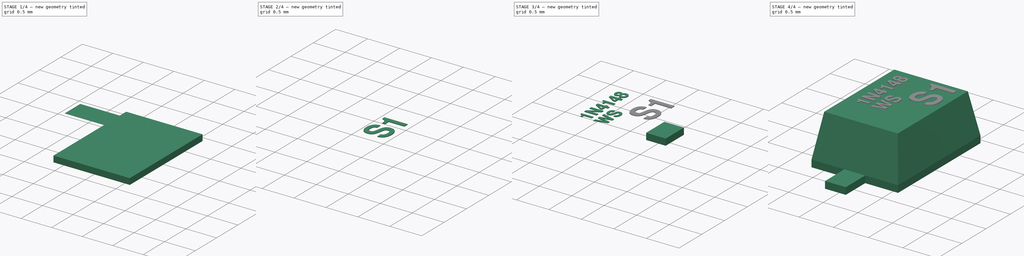
[diagram: build sequence overview — one tinted view per stage of 4, left to right]
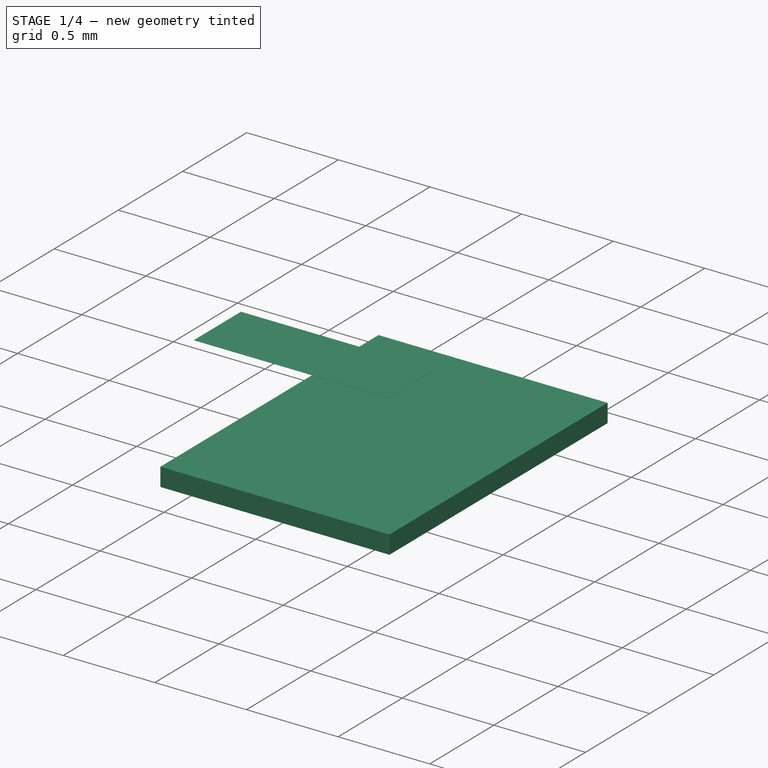
[diagram: stage 1 of 4 — iso view after this stage's code; geometry added in this stage tinted green]
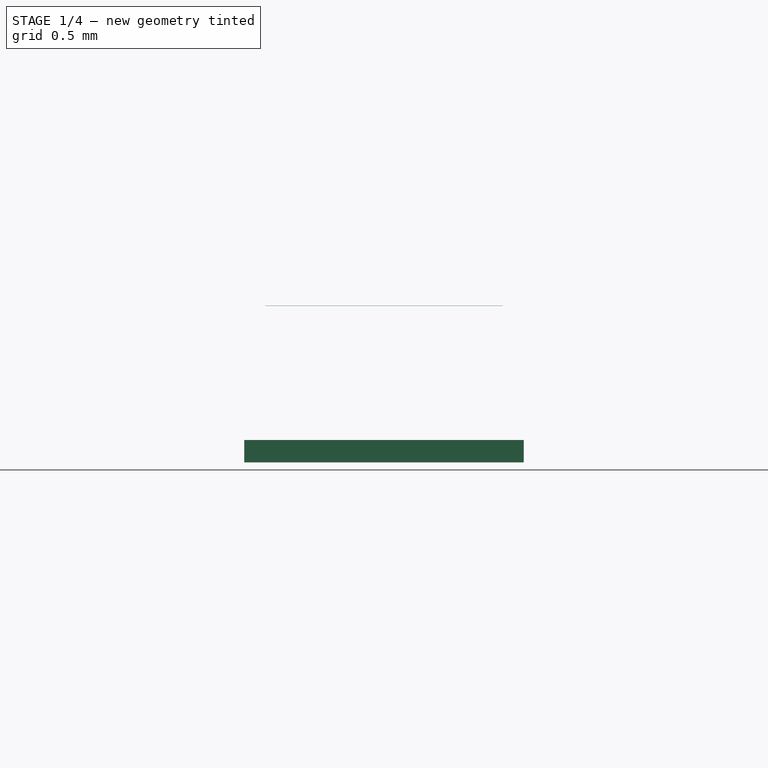
[diagram: stage 1 of 4 — front view after this stage's code; geometry added in this stage tinted green]
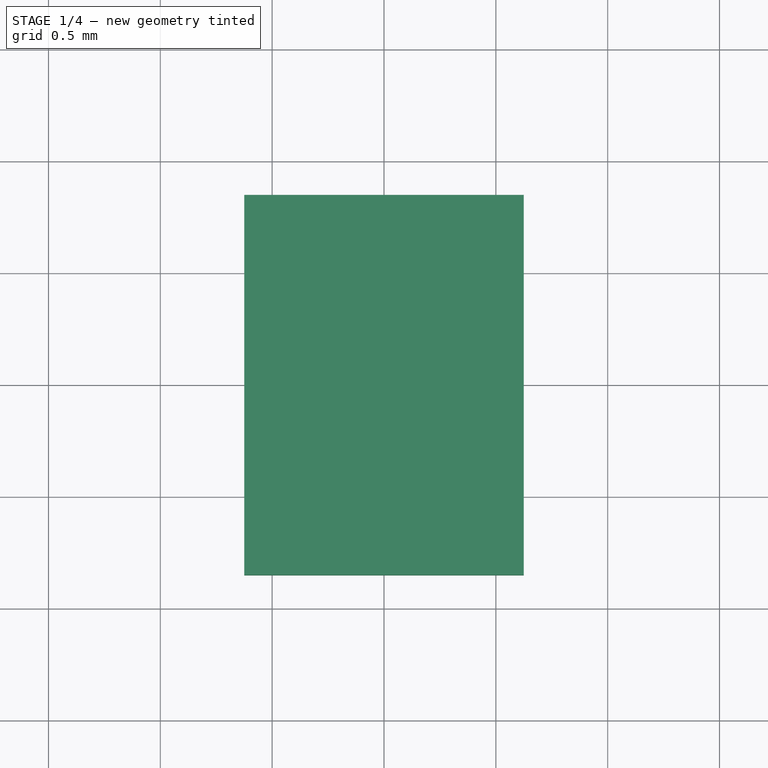
[diagram: stage 1 of 4 — top view after this stage's code; geometry added in this stage tinted green]
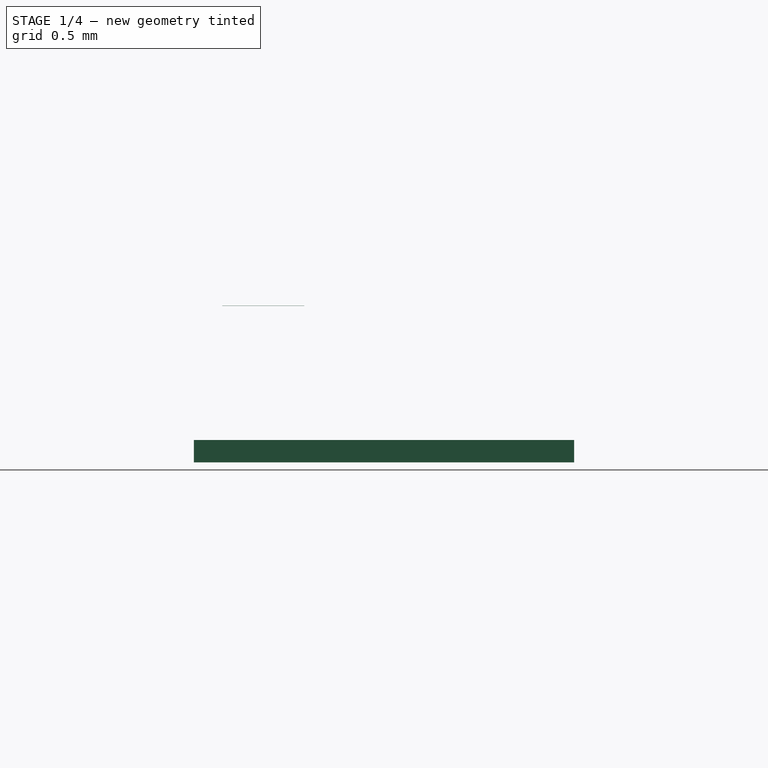
[diagram: stage 1 of 4 — right view after this stage's code; geometry added in this stage tinted green]
FCSTD DOCUMENT  (FreeCAD 0.19R16945 (Git))
Label: SOD323FL
License: All rights reserved
LicenseURL: http://en.wikipedia.org/wiki/All_rights_reserved
objects: Sketcher::SketchObject×5, PartDesign::Body×4, PartDesign::Pad×3, Part::Part2DObjectPython×3, Part::Extrusion×3, PartDesign::AdditiveLoft×1, PartDesign::FeatureBase×1, Part::MultiFuse×1
note: 25 computed .brp shape members not serialized (recipe doc carries the construction recipe); baked Part::Feature solids carry a one-line shape summary decoded from their .brp

FEATURE [Sketcher::SketchObject] Sketch
  AttachmentOffset = pos=(0,0,0.1) rot=(0,0,1;0rad)
  MapMode = 5
  Placement = pos=(0,0,0.1) rot=(0,0,1;0rad)
  Support = -> [XY_Plane]
  sketch-geometry (4):
    g0: LineSegment StartX=0.625 StartY=0.85 StartZ=0 EndX=-0.625 EndY=0.85 EndZ=0
    g1: LineSegment StartX=-0.625 StartY=0.85 StartZ=0 EndX=-0.625 EndY=-0.85 EndZ=0
    g2: LineSegment StartX=-0.625 StartY=-0.85 StartZ=0 EndX=0.625 EndY=-0.85 EndZ=0
    g3: LineSegment StartX=0.625 StartY=-0.85 StartZ=0 EndX=0.625 EndY=0.85 EndZ=0
  constraints (11):
    c: Coincident(g0,g1)
    c: Coincident(g1,g2)
    c: Coincident(g2,g3)
    c: Coincident(g3,g0)
    c: Horizontal(g0)
    c: Horizontal(g2)
    c: Vertical(g1)
    c: Vertical(g3)
    c: Symmetric(g0,g1,g-1)
    c: DistanceX(g0,g0) = 1.25
    c: DistanceY(g3,g3) = 1.7
FEATURE [Sketcher::SketchObject] Sketch001
  AttachmentOffset = pos=(0,0,0.7) rot=(0,0,1;0rad)
  MapMode = 5
  Placement = pos=(0,0,0.7) rot=(0,0,1;0rad)
  Support = -> [XY_Plane]
  expr: Constraints[10] = 0.85 * 1.7
  expr: Constraints[9] = 0.85 * 1.25
  sketch-geometry (4):
    g0: LineSegment StartX=-0.53125 StartY=-0.7225 StartZ=0 EndX=0.53125 EndY=-0.7225 EndZ=0
    g1: LineSegment StartX=0.53125 StartY=-0.7225 StartZ=0 EndX=0.53125 EndY=0.7225 EndZ=0
    g2: LineSegment StartX=0.53125 StartY=0.7225 StartZ=0 EndX=-0.53125 EndY=0.7225 EndZ=0
    g3: LineSegment StartX=-0.53125 StartY=0.7225 StartZ=0 EndX=-0.53125 EndY=-0.7225 EndZ=0
  constraints (11):
    c: Coincident(g0,g1)
    c: Coincident(g1,g2)
    c: Coincident(g2,g3)
    c: Coincident(g3,g0)
    c: Horizontal(g0)
    c: Horizontal(g2)
    c: Vertical(g1)
    c: Vertical(g3)
    c: Symmetric(g1,g0,g-1)
    c: DistanceX(g2,g2) = 1.0625
    c: DistanceY(g1,g1) = 1.445
FEATURE [Sketcher::SketchObject] Sketch002
  MapMode = 5
  Support = -> [XY_Plane]
  expr: Constraints[10] = Sketch.Constraints[10]
  expr: Constraints[9] = Sketch.Constraints[9]
  sketch-geometry (4):
    g0: LineSegment StartX=0.625 StartY=0.85 StartZ=0 EndX=-0.625 EndY=0.85 EndZ=0
    g1: LineSegment StartX=-0.625 StartY=0.85 StartZ=0 EndX=-0.625 EndY=-0.85 EndZ=0
    g2: LineSegment StartX=-0.625 StartY=-0.85 StartZ=0 EndX=0.625 EndY=-0.85 EndZ=0
    g3: LineSegment StartX=0.625 StartY=-0.85 StartZ=0 EndX=0.625 EndY=0.85 EndZ=0
  constraints (11):
    c: Coincident(g0,g1)
    c: Coincident(g1,g2)
    c: Coincident(g2,g3)
    c: Coincident(g3,g0)
    c: Horizontal(g0)
    c: Horizontal(g2)
    c: Vertical(g1)
    c: Vertical(g3)
    c: Symmetric(g0,g1,g-1)
    c: DistanceX(g0,g0) = 1.25
    c: DistanceY(g3,g3) = 1.7
FEATURE [PartDesign::Pad] Pad
  Length = 0.1
  Length2 = 100
  Profile = -> Sketch002
  Type = 0
FEATURE [PartDesign::Body] Body002  label="Lead_1_K"
  BaseFeature = -> Body001
  Group = -> [Clone]
  Origin = -> Origin002
  Placement = pos=(0,0,0) rot=(0,0,1;3.14159rad)
  Tip = -> Clone
FEATURE [Sketcher::SketchObject] Sketch004
  AttachmentOffset = pos=(0,0,0.7) rot=(0,0,1;0rad)
  MapMode = 5
  Placement = pos=(0,0,0.7) rot=(0,0,1;0rad)
  Support = -> [XY_Plane003]
  expr: Constraints[9] = 0.85 * 1.7 / 2
  expr: Constraints[8] = 0.85 * 1.25
  sketch-geometry (4):
    g0: LineSegment StartX=-0.53125 StartY=-0.7225 StartZ=0 EndX=0.53125 EndY=-0.7225 EndZ=0
    g1: LineSegment StartX=0.53125 StartY=-0.7225 StartZ=0 EndX=0.53125 EndY=-0.356144 EndZ=0
    g2: LineSegment StartX=0.53125 StartY=-0.356144 StartZ=0 EndX=-0.53125 EndY=-0.356144 EndZ=0
    g3: LineSegment StartX=-0.53125 StartY=-0.356144 StartZ=0 EndX=-0.53125 EndY=-0.7225 EndZ=0
  constraints (10):
    c: Coincident(g0,g1)
    c: Coincident(g1,g2)
    c: Coincident(g2,g3)
    c: Coincident(g3,g0)
    c: Horizontal(g0)
    c: Vertical(g1)
    c: Vertical(g3)
    c: Symmetric(g2,g1,g-2)
    c: DistanceX(g2,g2) = 1.0625
    c: DistanceY(g0,g-1) = 0.7225
FEATURE [PartDesign::Pad] Pad002
  Length = 0.001
  Length2 = 100
  Profile = -> Sketch004
  Type = 0
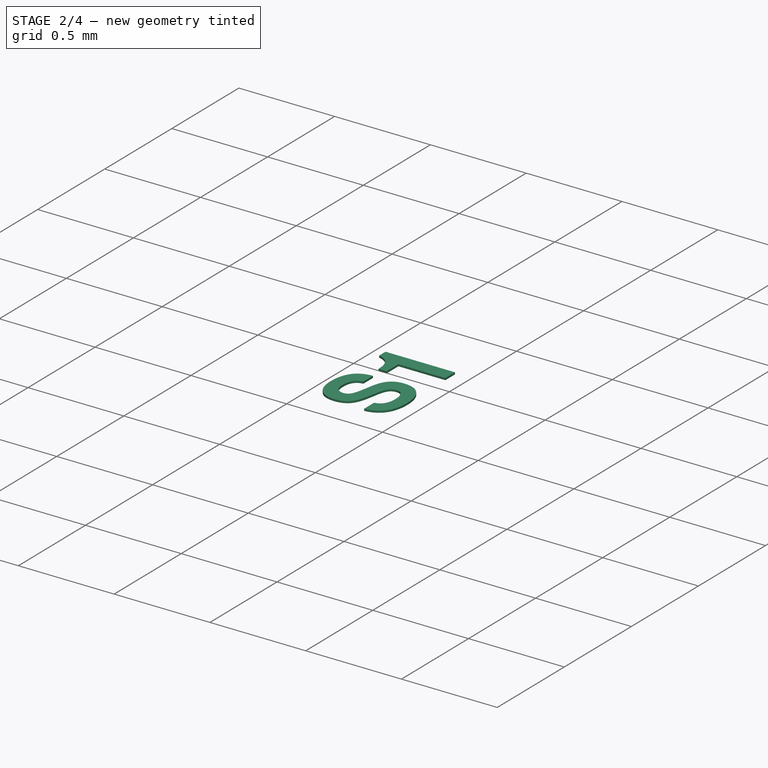
[diagram: stage 2 of 4 — iso view after this stage's code; geometry added in this stage tinted green]
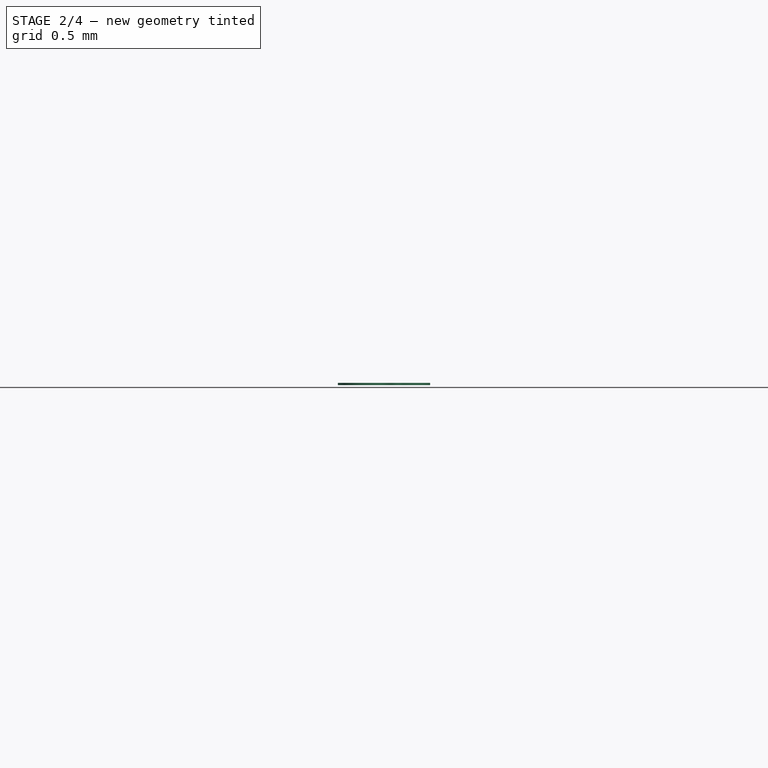
[diagram: stage 2 of 4 — front view after this stage's code; geometry added in this stage tinted green]
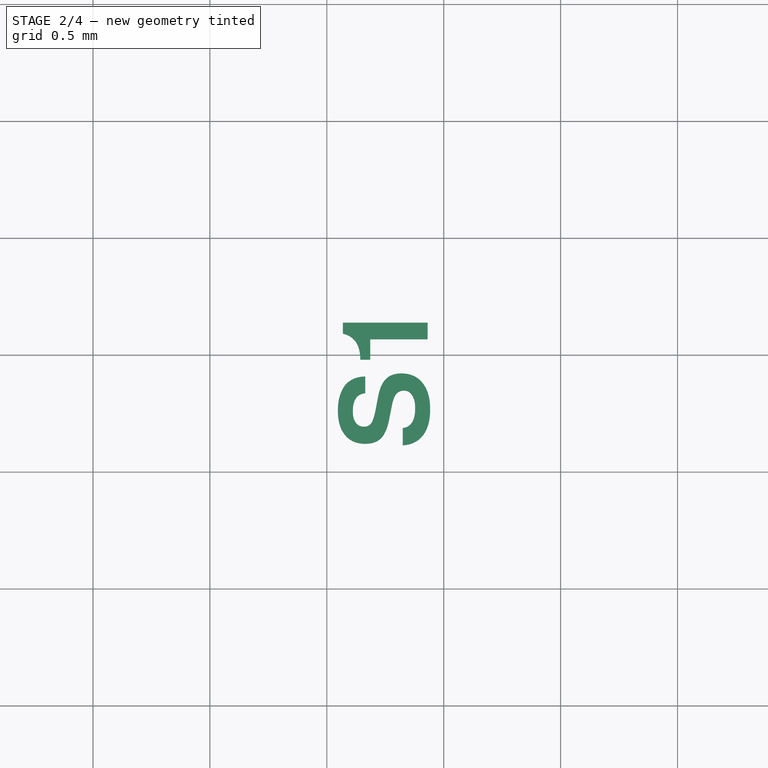
[diagram: stage 2 of 4 — top view after this stage's code; geometry added in this stage tinted green]
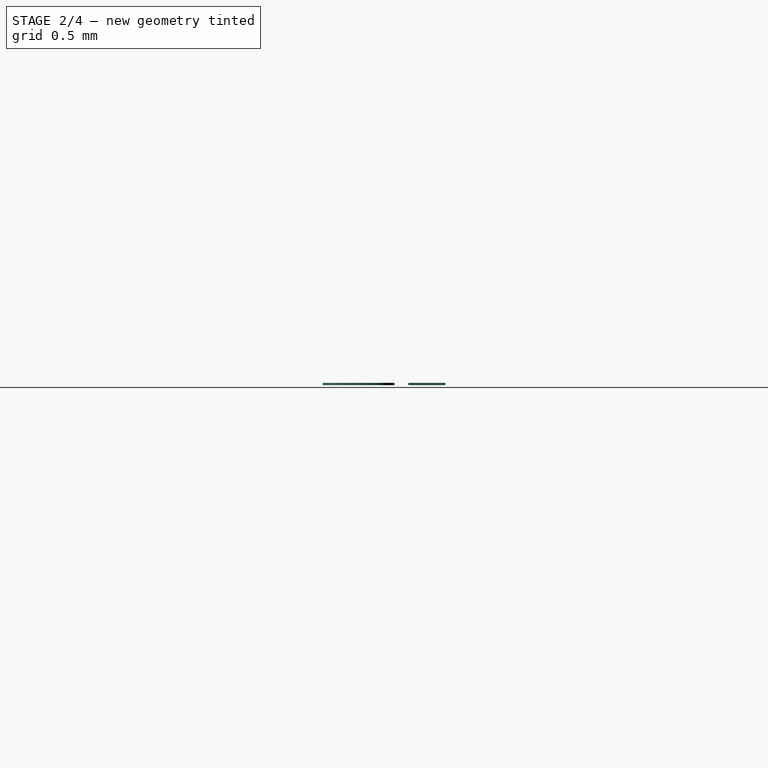
[diagram: stage 2 of 4 — right view after this stage's code; geometry added in this stage tinted green]
FEATURE [PartDesign::AdditiveLoft] AdditiveLoft
  BaseFeature = -> Pad
  Closed = true
  Profile = -> Sketch
  Ruled = false
  Sections = -> [Sketch001]
FEATURE [Part::Part2DObjectPython] ShapeString002  # Draft 2D object (typed FeaturePython)
  AttachmentOffset = pos=(0.1,-0.45,0) rot=(0,0,-1;1.5708rad)
  FontFile = <userpath>/Desktop/GitHub/freecad-projects/00-fonts/FreeSansBold.ttf
  MapMode = 6
  Placement = pos=(0.43125,0.093856,0.7) rot=(0,0,1;1.5708rad)
  Size = 0.2
  String = S1
  Support = -> [AdditiveLoft,Pad002]
  Tracking = 0
FEATURE [Part::Extrusion] Extrude002  label="Marking_3"
  Base = -> ShapeString002
  Dir = (0,0,1)
  DirMode = 2
  FaceMakerClass = Part::FaceMakerBullseye
  LengthFwd = 0.01
  LengthRev = 0
  Solid = false
  Symmetric = false
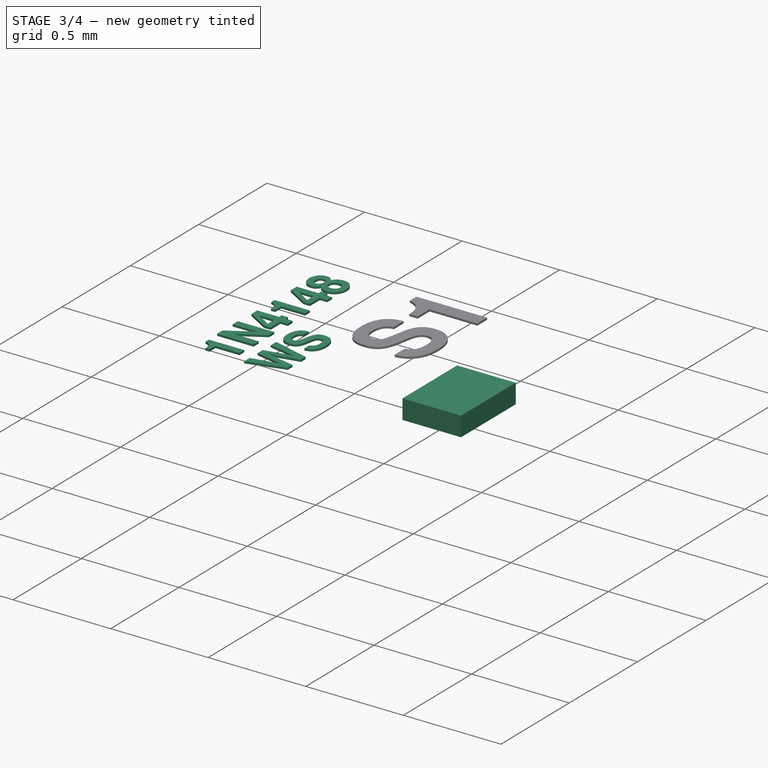
[diagram: stage 3 of 4 — iso view after this stage's code; geometry added in this stage tinted green]
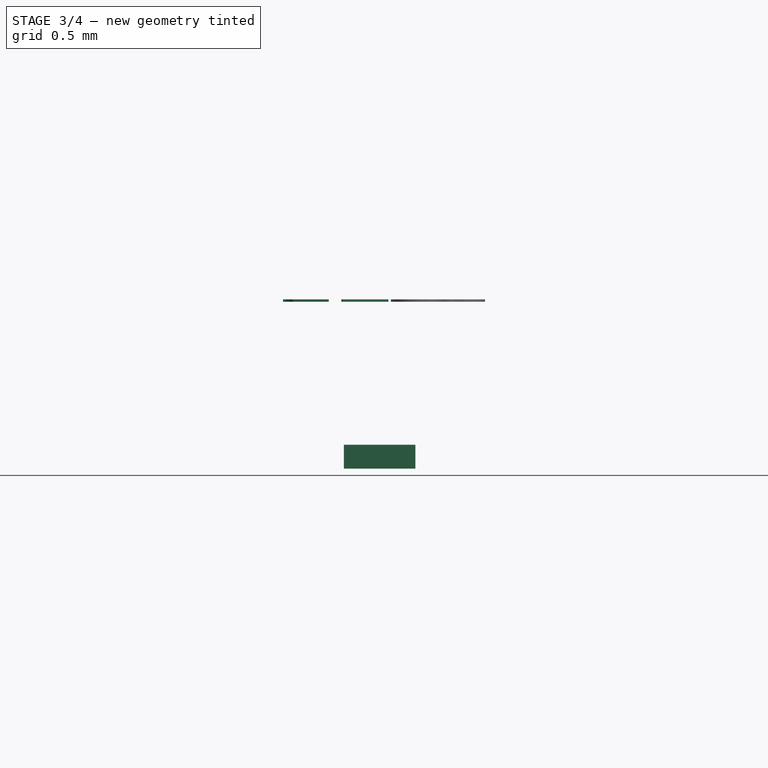
[diagram: stage 3 of 4 — front view after this stage's code; geometry added in this stage tinted green]
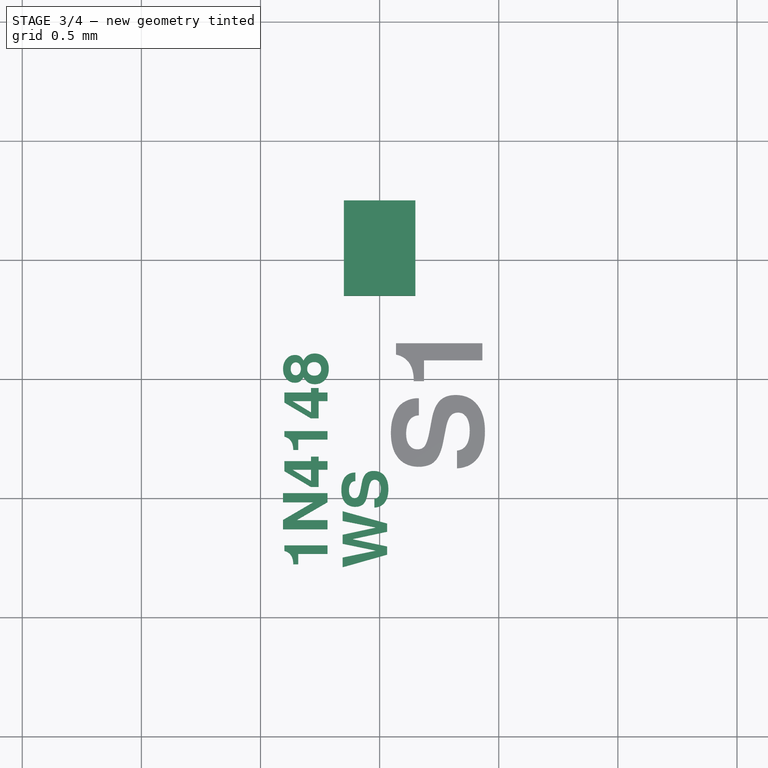
[diagram: stage 3 of 4 — top view after this stage's code; geometry added in this stage tinted green]
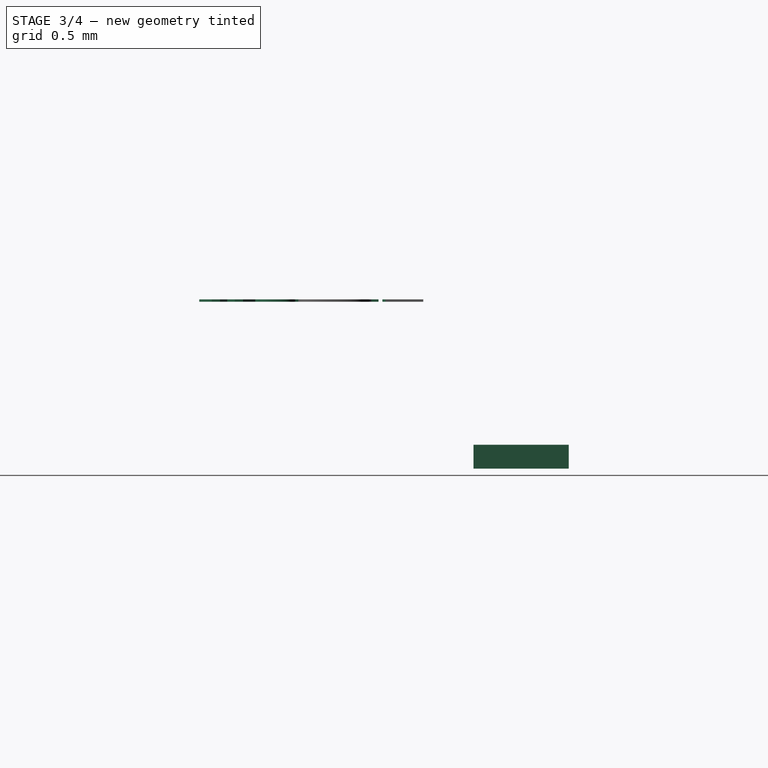
[diagram: stage 3 of 4 — right view after this stage's code; geometry added in this stage tinted green]
FEATURE [PartDesign::Body] Body  label="Package"
  Group = -> [Sketch,Sketch001,Sketch002,Pad,AdditiveLoft]
  Origin = -> Origin
  Tip = -> AdditiveLoft
FEATURE [Sketcher::SketchObject] Sketch003
  MapMode = 5
  Support = -> [XY_Plane001]
  expr: Constraints[10] = 1.7 / 2
  expr: Constraints[9] = (2.5 - 1.7) / 2
  sketch-geometry (4):
    g0: LineSegment StartX=-0.15 StartY=0.85 StartZ=0 EndX=0.15 EndY=0.85 EndZ=0
    g1: LineSegment StartX=0.15 StartY=0.85 StartZ=0 EndX=0.15 EndY=1.25 EndZ=0
    g2: LineSegment StartX=0.15 StartY=1.25 StartZ=0 EndX=-0.15 EndY=1.25 EndZ=0
    g3: LineSegment StartX=-0.15 StartY=1.25 StartZ=0 EndX=-0.15 EndY=0.85 EndZ=0
  constraints (11):
    c: Coincident(g0,g1)
    c: Coincident(g1,g2)
    c: Coincident(g2,g3)
    c: Coincident(g3,g0)
    c: Horizontal(g0)
    c: Vertical(g1)
    c: Vertical(g3)
    c: Symmetric(g1,g2,g-2)
    c: DistanceX(g2,g2) = 0.3
    c: DistanceY(g1,g1) = 0.4
    c: DistanceY(g-1,g0) = 0.85
FEATURE [PartDesign::Pad] Pad001
  Length = 0.1
  Length2 = 100
  Profile = -> Sketch003
  Type = 0
FEATURE [PartDesign::Body] Body003  label="Marking_K"
  Group = -> [Sketch004,Pad002]
  Origin = -> Origin003
  Tip = -> Pad002
FEATURE [Part::Part2DObjectPython] ShapeString  # Draft 2D object (typed FeaturePython)
  AttachmentOffset = pos=(0.75,-0.05,0) rot=(0,0,-1;1.5708rad)
  FontFile = <userpath>/Desktop/GitHub/freecad-projects/00-fonts/FreeSansBold.ttf
  MapMode = 6
  Placement = pos=(-0.21875,-0.306144,0.7) rot=(0,0,1;1.5708rad)
  Size = 0.1
  String = 1N4148
  Support = -> [AdditiveLoft,Pad002]
  Tracking = 0
FEATURE [Part::Extrusion] Extrude  label="Marking_1"
  Base = -> ShapeString
  Dir = (0,0,1)
  DirMode = 2
  FaceMakerClass = Part::FaceMakerBullseye
  LengthFwd = 0.01
  LengthRev = 0
  Solid = false
  Symmetric = false
FEATURE [Part::Part2DObjectPython] ShapeString001  # Draft 2D object (typed FeaturePython)
  AttachmentOffset = pos=(0.5,-0.05,0) rot=(0,0,-1;1.5708rad)
  FontFile = <userpath>/Desktop/GitHub/freecad-projects/00-fonts/FreeSansBold.ttf
  MapMode = 6
  Placement = pos=(0.03125,-0.306144,0.7) rot=(0,0,1;1.5708rad)
  Size = 0.1
  String = WS
  Support = -> [AdditiveLoft,Pad002]
  Tracking = 0
FEATURE [Part::Extrusion] Extrude001  label="Marking_2"
  Base = -> ShapeString001
  Dir = (0,0,1)
  DirMode = 2
  FaceMakerClass = Part::FaceMakerBullseye
  LengthFwd = 0.01
  LengthRev = 0
  Solid = false
  Symmetric = false
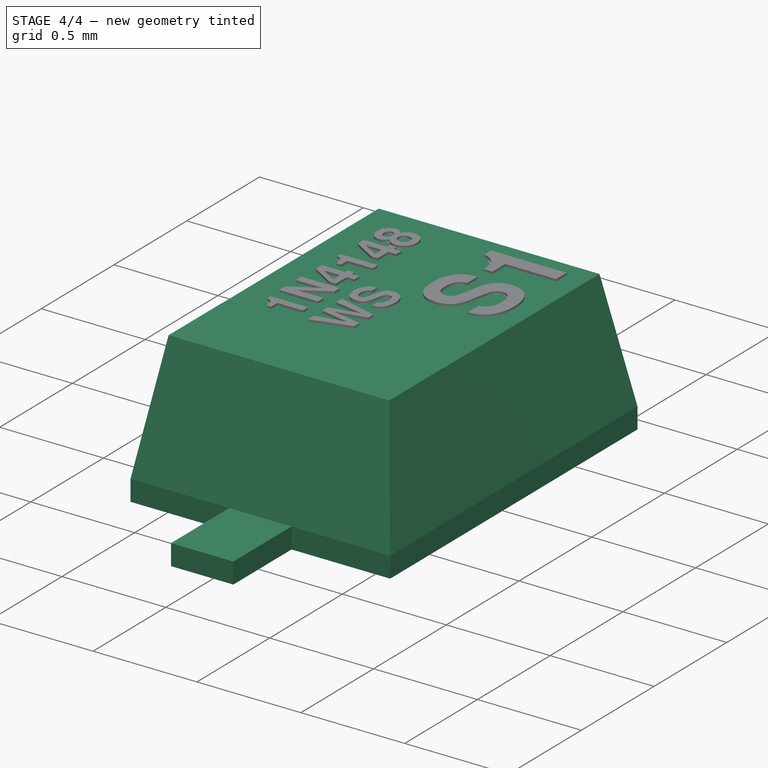
[diagram: stage 4 of 4 — iso view after this stage's code; geometry added in this stage tinted green]
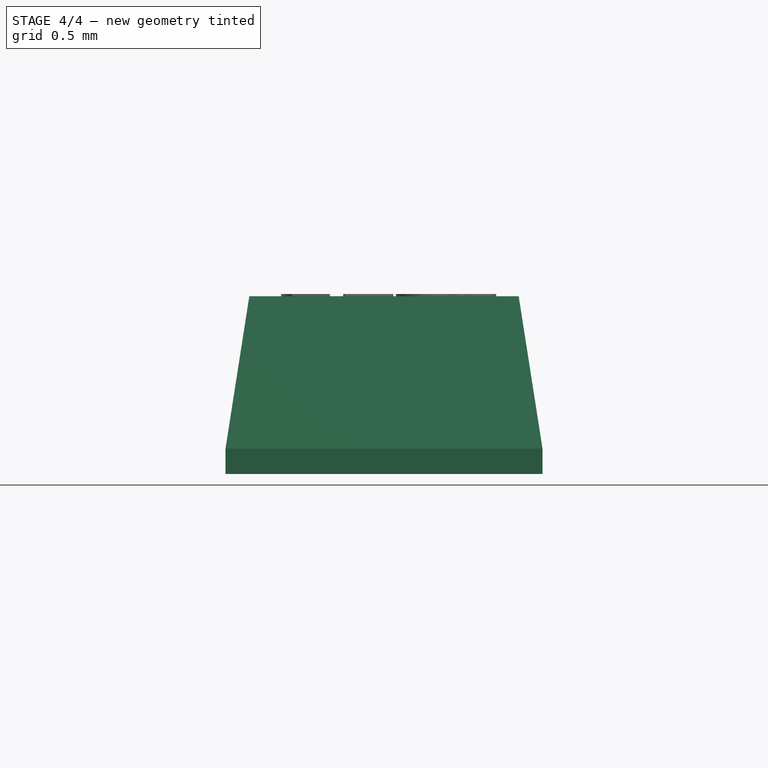
[diagram: stage 4 of 4 — front view after this stage's code; geometry added in this stage tinted green]
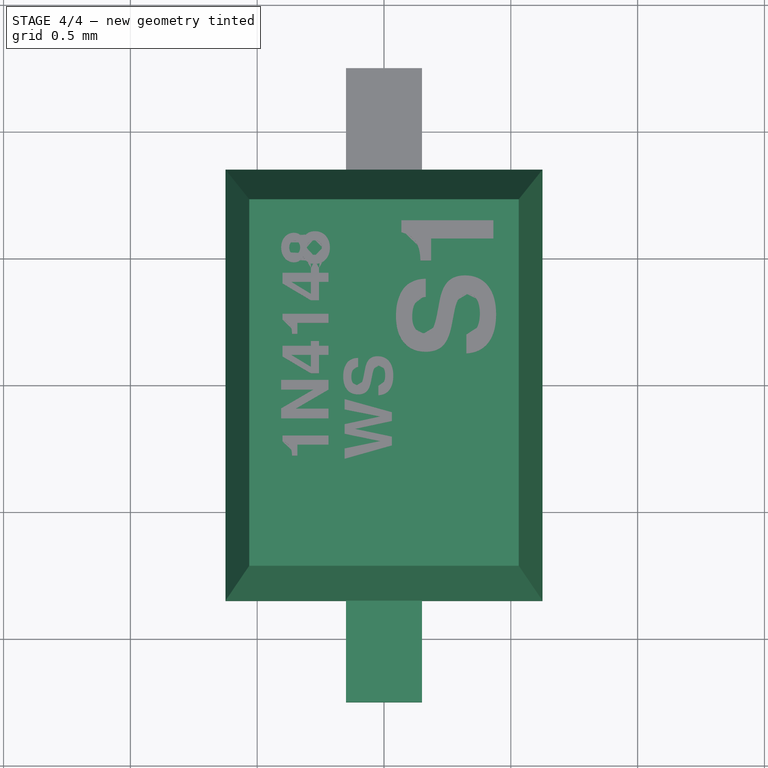
[diagram: stage 4 of 4 — top view after this stage's code; geometry added in this stage tinted green]
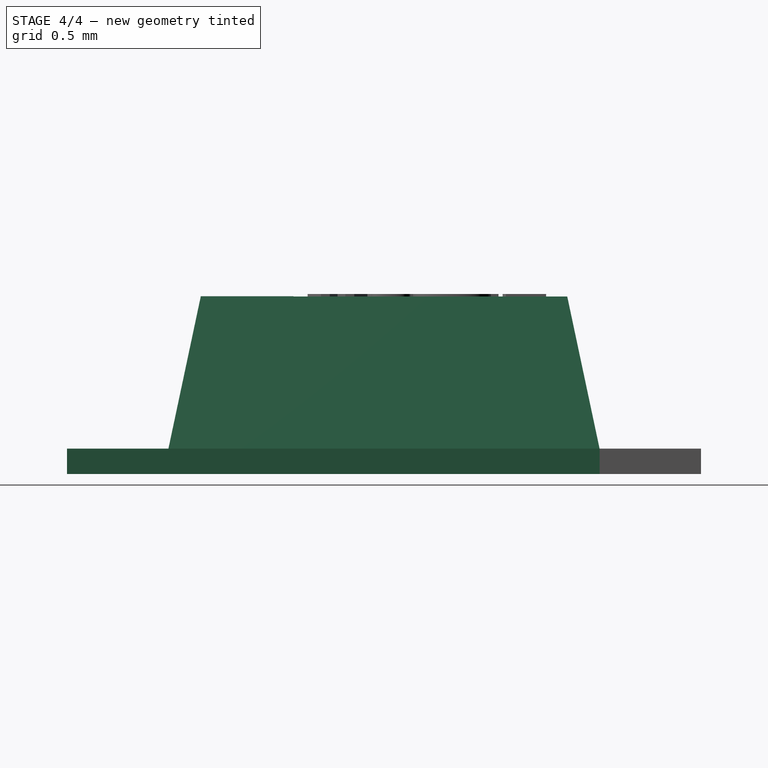
[diagram: stage 4 of 4 — right view after this stage's code; geometry added in this stage tinted green]
FEATURE [PartDesign::Body] Body001  label="Lead_2_A"
  Group = -> [Sketch003,Pad001]
  Origin = -> Origin001
  Tip = -> Pad001
FEATURE [PartDesign::FeatureBase] Clone
  BaseFeature = -> Body001
FEATURE [Part::MultiFuse] Fusion  label="1N4148WS"
  Shapes = -> [Extrude002,Body001,Extrude,Extrude001,Body002,Body003,Body]
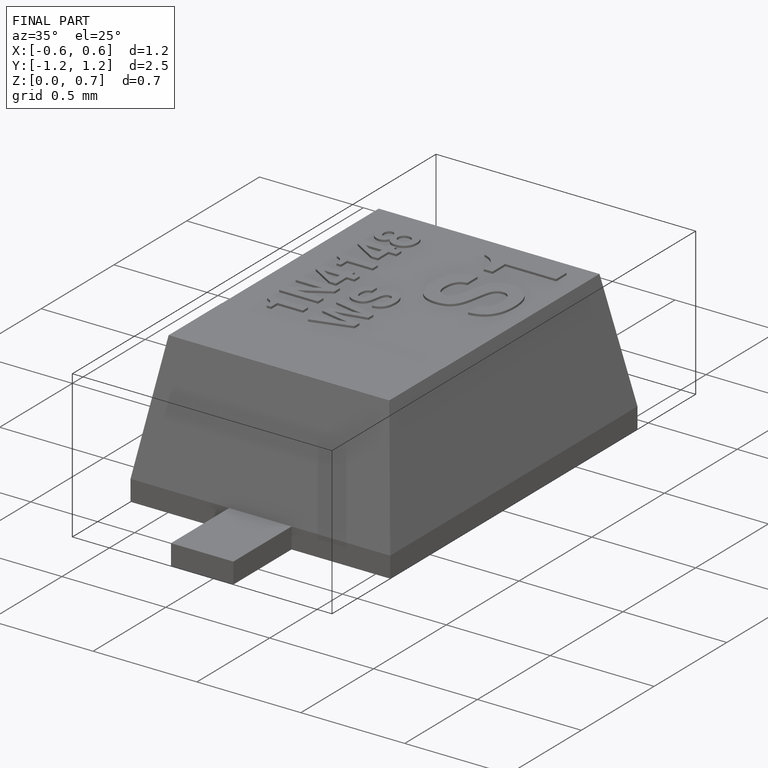
[diagram: finished part — iso view with bounding-box wireframe]
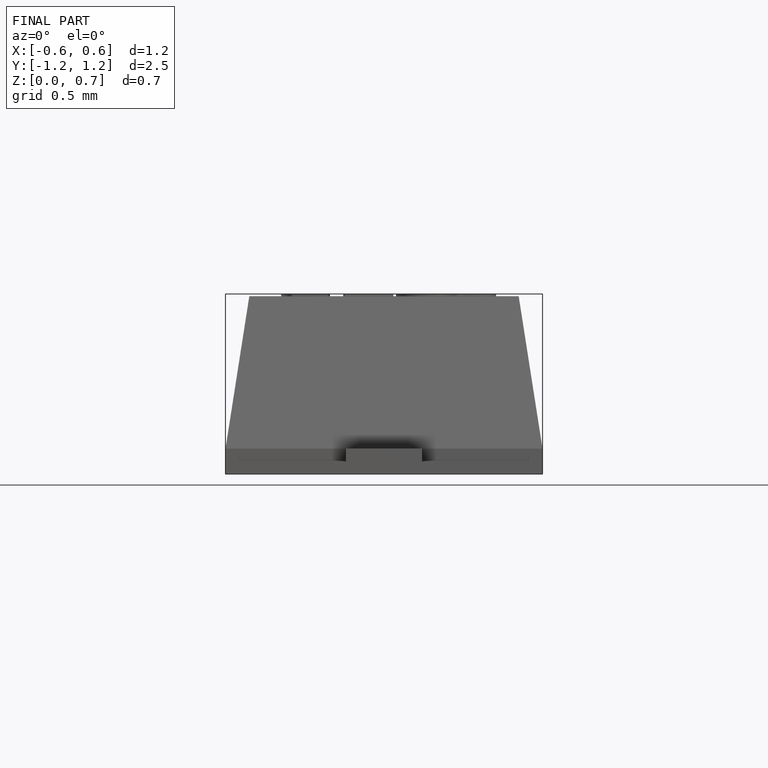
[diagram: finished part — front view with bounding-box wireframe]
